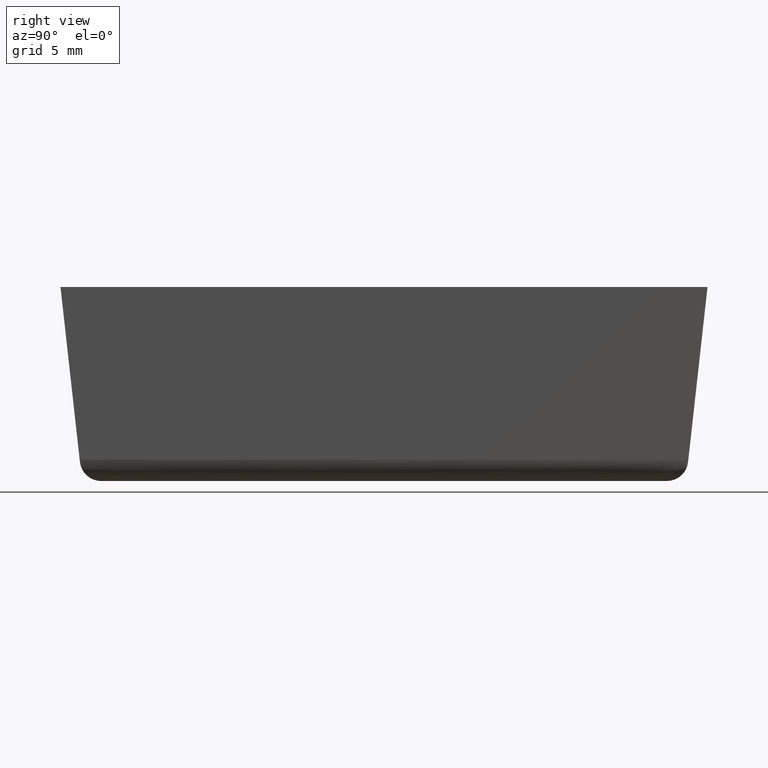
[diagram: clean part render]
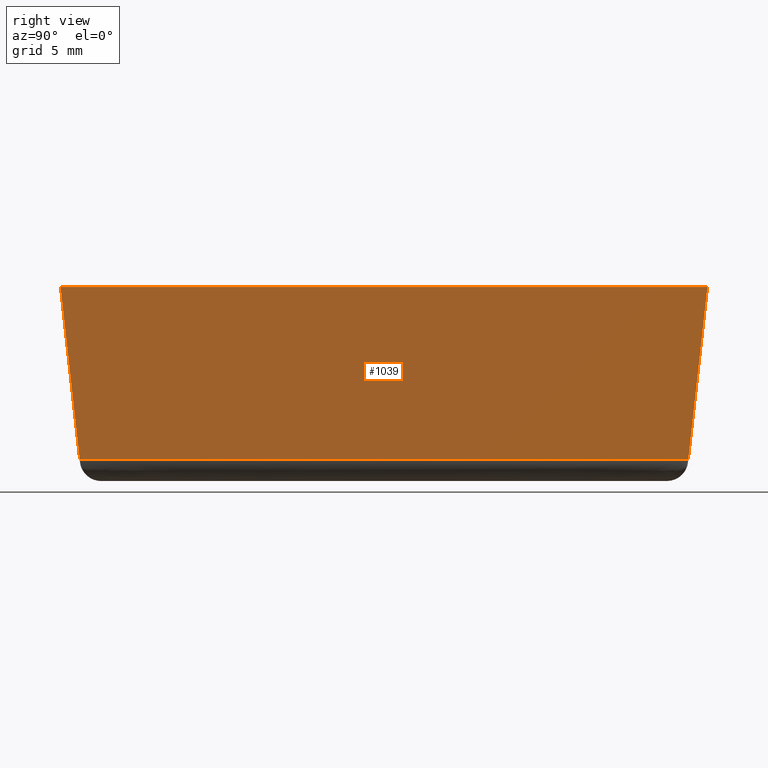
[diagram: same view with one face highlighted and labeled with its STEP entity id]
A machine part, right view. The second image highlights one B-rep face of the part: STEP entity #1039.
In plain terms, the highlighted face is a freeform B-spline surface patch.
Its self-contained STEP definition (entity closure, byte-faithful):
#951=CARTESIAN_POINT('',(-176.0,6.111111097931721,30.500000000000000));
#952=VERTEX_POINT('',#951);
#968=CARTESIAN_POINT('',(-176.0,6.999999881386110,38.500000000000000));
#969=VERTEX_POINT('',#968);
#975=CARTESIAN_POINT('',(-176.0,6.111111097931721,30.500000000000000));
#976=CARTESIAN_POINT('',(-176.0,6.999999881386110,38.500000000000000));
#977=QUASI_UNIFORM_CURVE('',1,(#975,#976),.UNSPECIFIED.,.F.,.U.);
#978=EDGE_CURVE('',#952,#969,#977,.T.);
#990=CARTESIAN_POINT('',(-176.0,-22.111111097931751,30.500000000000000));
#991=VERTEX_POINT('',#990);
#1005=CARTESIAN_POINT('',(-176.0,-22.999999881386149,38.500000000000000));
#1006=VERTEX_POINT('',#1005);
#1007=CARTESIAN_POINT('',(-176.0,-22.111111097931751,30.500000000000000));
#1008=CARTESIAN_POINT('',(-176.0,-22.999999881386149,38.500000000000000));
#1009=QUASI_UNIFORM_CURVE('',1,(#1007,#1008),.UNSPECIFIED.,.F.,.U.);
#1010=EDGE_CURVE('',#991,#1006,#1009,.T.);
#1020=CARTESIAN_POINT('',(-176.0,-24.498500093009341,30.100400015505549));
#1021=CARTESIAN_POINT('',(-176.0,-24.498500093009341,38.899600199071173));
#1022=CARTESIAN_POINT('',(-176.0,8.498500629451097,30.100400015505549));
#1023=CARTESIAN_POINT('',(-176.0,8.498500629451097,38.899600199071173));
#1024=B_SPLINE_SURFACE_WITH_KNOTS('',1,1,((#1020,#1022),(#1021,#1023)),.UNSPECIFIED.,.F.,.F.,.U.,(2,2),(2,2),(0.0,8.799200183565619),(0.0,32.997000722460442),.UNSPECIFIED.);
#1025=ORIENTED_EDGE('',*,*,#978,.T.);
#1026=CARTESIAN_POINT('',(-176.0,-22.999999881386149,38.500000000000000));
#1027=CARTESIAN_POINT('',(-176.0,6.999999881386110,38.500000000000000));
#1028=QUASI_UNIFORM_CURVE('',1,(#1026,#1027),.UNSPECIFIED.,.F.,.U.);
#1029=EDGE_CURVE('',#1006,#969,#1028,.T.);
#1030=ORIENTED_EDGE('',*,*,#1029,.F.);
#1031=ORIENTED_EDGE('',*,*,#1010,.F.);
#1032=CARTESIAN_POINT('',(-176.0,-22.111111097931751,30.500000000000000));
#1033=CARTESIAN_POINT('',(-176.0,6.111111097931721,30.500000000000000));
#1034=QUASI_UNIFORM_CURVE('',1,(#1032,#1033),.UNSPECIFIED.,.F.,.U.);
#1035=EDGE_CURVE('',#991,#952,#1034,.T.);
#1036=ORIENTED_EDGE('',*,*,#1035,.T.);
#1037=EDGE_LOOP('',(#1025,#1030,#1031,#1036));
#1038=FACE_OUTER_BOUND('',#1037,.T.);
#1039=ADVANCED_FACE('',(#1038),#1024,.F.);